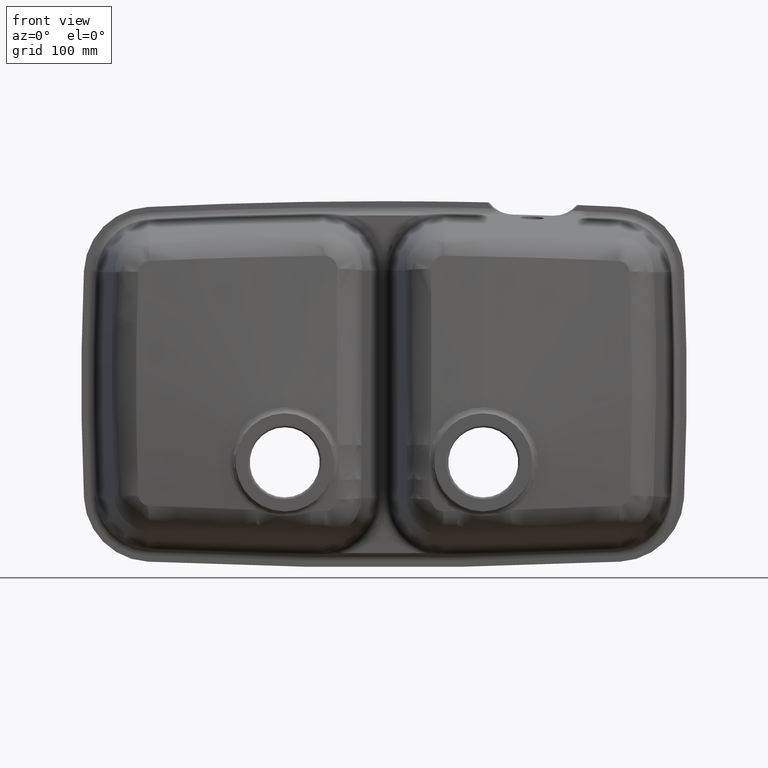
[diagram: clean part render]
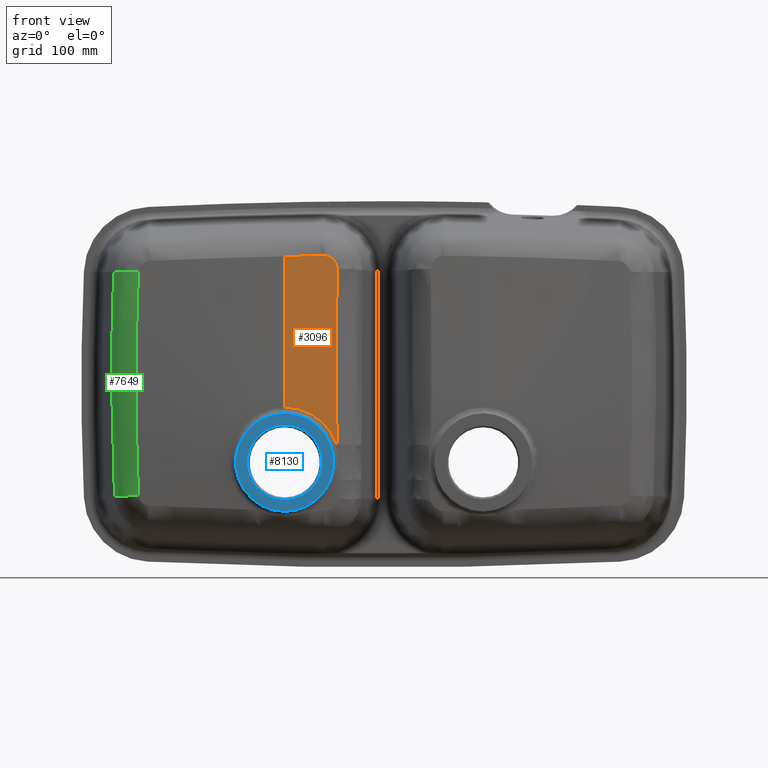
[diagram: same view with three faces highlighted in distinct colors, each labeled with its STEP entity id]
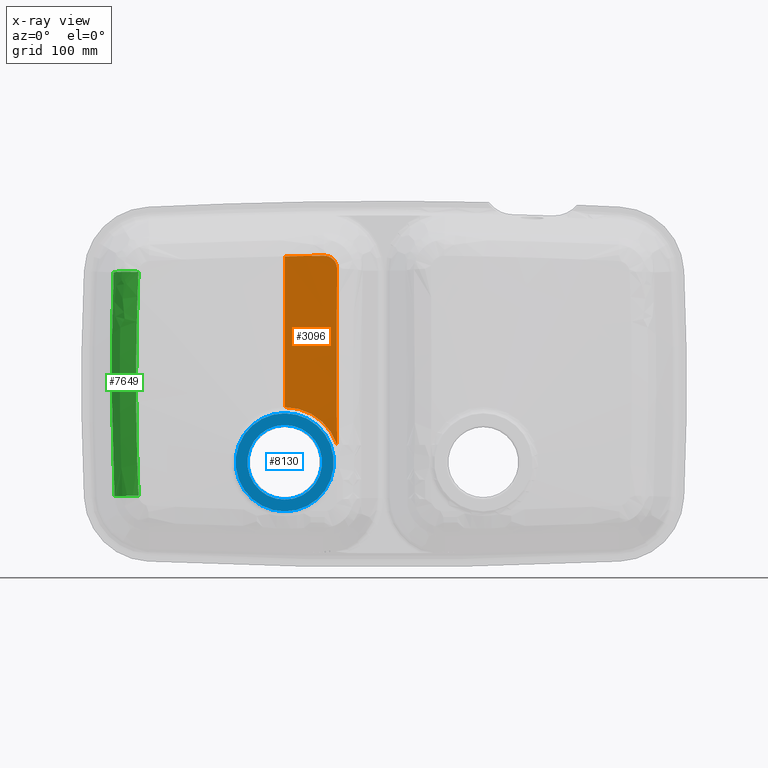
[diagram: x-ray of the same camera — body ghosted, the three highlighted faces saturated]
A machine part, front view with three faces highlighted in distinct colors.
The next image is the same camera in x-ray (body ghosted, the three faces saturated) — at least one of them is partly hidden behind the body in this view.
Their STEP definitions:

[orange] entity #3096 — the highlighted conical surface has half-angle 85.657 deg.
#158 = B_SPLINE_CURVE_WITH_KNOTS ( 'NONE', 3,
 ( #9717, #5851, #6613, #1115, #4264, #4298, #1144, #7391, #2737, #8200, #5075, #1179, #1985, #7428 ),
 .UNSPECIFIED., .F., .F.,
 ( 4, 2, 2, 2, 2, 2, 4 ),
 ( 0.07067209284286782300, 0.09935730717652363500, 0.1280425215101794500, 0.1567277358438352600, 0.1854129501774910400, 0.2427833788448027200, 0.3001538075121144000 ),
 .UNSPECIFIED. ) ;
#344 = DIRECTION ( 'NONE',  ( 0.0000000000000000000, 0.07572829474097282600, 0.9971284899026926500 ) ) ;
#566 = CARTESIAN_POINT ( 'NONE',  ( 120.1551832342902300, 1.654715429460115400, 158.6356603204801600 ) ) ;
#636 = CARTESIAN_POINT ( 'NONE',  ( 112.9395134687415100, 2.022236226964101200, 165.3109124205083200 ) ) ;
#667 = CARTESIAN_POINT ( 'NONE',  ( 118.9279575806813800, 1.769105793788708000, 160.4950657030094900 ) ) ;
#685 = DIRECTION ( 'NONE',  ( 0.0000000000000000000, -8.239523836350336800E-017, 1.000000000000000000 ) ) ;
#723 = DIRECTION ( 'NONE',  ( -0.0000000000000000000, 1.000000000000000000, 8.191772774009839300E-017 ) ) ;
#1109 = B_SPLINE_CURVE_WITH_KNOTS ( 'NONE', 3,
 ( #7332, #4332, #1370, #7577 ),
 .UNSPECIFIED., .F., .F.,
 ( 4, 4 ),
 ( 0.0000000000000000000, 0.05091544181470492000 ),
 .UNSPECIFIED. ) ;
#1115 = CARTESIAN_POINT ( 'NONE',  ( 122.0707607142422500, -11.81949924998842300, -40.35013401177111800 ) ) ;
#1144 = CARTESIAN_POINT ( 'NONE',  ( 121.8734990043594000, -9.614719707590753100, -2.222329744199195800 ) ) ;
#1179 = CARTESIAN_POINT ( 'NONE',  ( 122.1713085203319800, -1.711468703401609400, 112.0868703274706500 ) ) ;
#1215 = CONICAL_SURFACE ( 'NONE', #8558, 63.16105798457871900, 1.494995463840603600 ) ;
#1368 = CARTESIAN_POINT ( 'NONE',  ( 105.4154735399898600, 2.028873203288819900, 166.9365146197941700 ) ) ;
#1370 = CARTESIAN_POINT ( 'NONE',  ( 71.46224886830523800, 1.627631627222196200, 166.4444921457432500 ) ) ;
#1436 = CARTESIAN_POINT ( 'NONE',  ( 117.0406796761192800, 1.883540631787353300, 162.5003077496611500 ) ) ;
#1477 = CARTESIAN_POINT ( 'NONE',  ( 122.4118559755403300, 1.076818954258653000, 150.1810933609065700 ) ) ;
#1938 = AXIS2_PLACEMENT_3D ( 'NONE', #5405, #723, #8567 ) ;
#1985 = CARTESIAN_POINT ( 'NONE',  ( 122.2864565107624300, -0.3221642221016773900, 131.1342596749666100 ) ) ;
#2125 = CARTESIAN_POINT ( 'NONE',  ( 110.8659054664957800, 2.048829037880364600, 166.1132678664401400 ) ) ;
#2211 = FACE_OUTER_BOUND ( 'NONE', #8486, .T. ) ;
#2506 = B_SPLINE_CURVE_WITH_KNOTS ( 'NONE', 3,
 ( #1477, #3799, #9165, #3698, #4471, #3762, #4545, #6925, #6097, #566, #6892, #667, #3730, #1436, #6027, #6060, #6131, #4507, #636, #2902, #2125, #3829, #9959, #4603, #10025, #1368 ),
 .UNSPECIFIED., .F., .F.,
 ( 4, 2, 2, 2, 2, 2, 2, 2, 2, 2, 2, 2, 4 ),
 ( 0.0000000000000000000, 0.003328668433250859600, 0.004993002649876326200, 0.006657336866501792900, 0.008321671083127259500, 0.009986005299752725300, 0.01331467373300361300, 0.01497900794962908600, 0.01664334216625456100, 0.01997201059950555100, 0.02163634481613107100, 0.02330067903275658300, 0.02662934746600761600 ),
 .UNSPECIFIED. ) ;
#2737 = CARTESIAN_POINT ( 'NONE',  ( 121.8568574253427700, -7.748686521053190100, 26.36128420281100700 ) ) ;
#2884 = LINE ( 'NONE', #8151, #7033 ) ;
#2902 = CARTESIAN_POINT ( 'NONE',  ( 111.3962056046677800, 2.043583331415453200, 165.9302868823183100 ) ) ;
#2907 = ORIENTED_EDGE ( 'NONE', *, *, #3182, .T. ) ;
#3096 = ADVANCED_FACE ( 'NONE', ( #2211 ), #1215, .T. ) ;
#3182 = EDGE_CURVE ( 'NONE', #9123, #3790, #4162, .T. ) ;
#3698 = CARTESIAN_POINT ( 'NONE',  ( 121.9905051364474500, 1.351100522326686800, 154.0320274797501000 ) ) ;
#3730 = CARTESIAN_POINT ( 'NONE',  ( 118.2205967150070600, 1.818739271377084900, 161.3410910421340800 ) ) ;
#3762 = CARTESIAN_POINT ( 'NONE',  ( 121.5305096857410700, 1.459899400578553100, 155.6340483596859800 ) ) ;
#3790 = VERTEX_POINT ( 'NONE', #10066 ) ;
#3799 = CARTESIAN_POINT ( 'NONE',  ( 122.4191981401264300, 1.158729708440880500, 151.2962894106959200 ) ) ;
#3813 = ORIENTED_EDGE ( 'NONE', *, *, #9438, .T. ) ;
#3829 = CARTESIAN_POINT ( 'NONE',  ( 109.7983965929877400, 2.055313825657654600, 166.4232828113098900 ) ) ;
#4162 = CIRCLE ( 'NONE', #1938, 71.65123719112739300 ) ;
#4264 = CARTESIAN_POINT ( 'NONE',  ( 121.9989009234208800, -11.30923613312132600, -30.81582360130247600 ) ) ;
#4298 = CARTESIAN_POINT ( 'NONE',  ( 121.9009893882392400, -10.20709967451554700, -11.75190647765070800 ) ) ;
#4332 = CARTESIAN_POINT ( 'NONE',  ( 88.43706372215994800, 1.772518592327492000, 166.7241051411357400 ) ) ;
#4471 = CARTESIAN_POINT ( 'NONE',  ( 121.8540565138644500, 1.388325964644496100, 154.5749974688449100 ) ) ;
#4507 = CARTESIAN_POINT ( 'NONE',  ( 113.9172047557668600, 2.000549166745522600, 164.8018920152529200 ) ) ;
#4545 = CARTESIAN_POINT ( 'NONE',  ( 121.3431291361018900, 1.494413293109627400, 156.1524670646368000 ) ) ;
#4603 = CARTESIAN_POINT ( 'NONE',  ( 107.6340046314754600, 2.054657094764151800, 166.8541865221507100 ) ) ;
#4816 = CARTESIAN_POINT ( 'NONE',  ( 54.49117672960323900, 1.601166361354189500, 166.0960190858391700 ) ) ;
#5008 = VERTEX_POINT ( 'NONE', #5015 ) ;
#5015 = CARTESIAN_POINT ( 'NONE',  ( 105.4154735399898600, 2.028873203288819900, 166.9365146197941700 ) ) ;
#5075 = CARTESIAN_POINT ( 'NONE',  ( 121.9814089252728200, -4.448999600771051300, 73.98973189943275500 ) ) ;
#5095 = VERTEX_POINT ( 'NONE', #9659 ) ;
#5109 = EDGE_CURVE ( 'NONE', #3790, #5095, #158, .T. ) ;
#5369 = DIRECTION ( 'NONE',  ( -0.0000000000000000000, 1.000000000000000000, 8.191772774009839300E-017 ) ) ;
#5405 = CARTESIAN_POINT ( 'NONE',  ( 54.49117672957483200, -13.26477382000577000, -101.2978072488275200 ) ) ;
#5851 = CARTESIAN_POINT ( 'NONE',  ( 122.3497170271441200, -13.03970553504371200, -68.97101626502016800 ) ) ;
#6027 = CARTESIAN_POINT ( 'NONE',  ( 116.6274122710002100, 1.903520235001756400, 162.8682720579399800 ) ) ;
#6060 = CARTESIAN_POINT ( 'NONE',  ( 115.7598601366028400, 1.940179876775521600, 163.5663058246226700 ) ) ;
#6097 = CARTESIAN_POINT ( 'NONE',  ( 120.6807386820319700, 1.593041646333796000, 157.6642371017454100 ) ) ;
#6131 = CARTESIAN_POINT ( 'NONE',  ( 115.3072044908336000, 1.956761737755397200, 163.8946488016162600 ) ) ;
#6613 = CARTESIAN_POINT ( 'NONE',  ( 122.2456497601805300, -12.68541585413820300, -59.42769110303746800 ) ) ;
#6718 = CARTESIAN_POINT ( 'NONE',  ( 54.49117672957483900, -13.26477382000577500, -29.64657005770095600 ) ) ;
#6886 = VERTEX_POINT ( 'NONE', #4816 ) ;
#6892 = CARTESIAN_POINT ( 'NONE',  ( 119.8658501259557000, 1.684445716858865600, 159.1122711185344400 ) ) ;
#6925 = CARTESIAN_POINT ( 'NONE',  ( 120.9182444708696000, 1.560984487847608900, 157.1675617965630400 ) ) ;
#7033 = VECTOR ( 'NONE', #344, 1000.000000000000200 ) ;
#7071 = ORIENTED_EDGE ( 'NONE', *, *, #5109, .T. ) ;
#7332 = CARTESIAN_POINT ( 'NONE',  ( 105.4154735399898600, 2.028873203288819900, 166.9365146197941700 ) ) ;
#7391 = CARTESIAN_POINT ( 'NONE',  ( 121.8515837744933500, -8.385737416685579100, 16.83427864820443500 ) ) ;
#7428 = CARTESIAN_POINT ( 'NONE',  ( 122.4118559755403300, 1.076818954258653000, 150.1810933609065700 ) ) ;
#7482 = ORIENTED_EDGE ( 'NONE', *, *, #8238, .F. ) ;
#7577 = CARTESIAN_POINT ( 'NONE',  ( 54.49117672960323900, 1.601166361354189500, 166.0960190858391700 ) ) ;
#8151 = CARTESIAN_POINT ( 'NONE',  ( 54.49117672957483200, -13.90957215830198900, -38.13674926424881300 ) ) ;
#8200 = CARTESIAN_POINT ( 'NONE',  ( 121.9058454562087200, -5.798903238430875200, 54.94007954608704100 ) ) ;
#8238 = EDGE_CURVE ( 'NONE', #9123, #6886, #2884, .T. ) ;
#8486 = EDGE_LOOP ( 'NONE', ( #7482, #2907, #7071, #3813, #8920 ) ) ;
#8558 = AXIS2_PLACEMENT_3D ( 'NONE', #10007, #5369, #685 ) ;
#8567 = DIRECTION ( 'NONE',  ( 0.0000000000000000000, -7.263196885279820200E-017, 1.000000000000000000 ) ) ;
#8920 = ORIENTED_EDGE ( 'NONE', *, *, #9096, .T. ) ;
#9096 = EDGE_CURVE ( 'NONE', #5008, #6886, #1109, .T. ) ;
#9123 = VERTEX_POINT ( 'NONE', #6718 ) ;
#9165 = CARTESIAN_POINT ( 'NONE',  ( 122.3140512653862400, 1.237480104051362100, 152.3983402279683000 ) ) ;
#9438 = EDGE_CURVE ( 'NONE', #5095, #5008, #2506, .T. ) ;
#9659 = CARTESIAN_POINT ( 'NONE',  ( 122.4118559755403300, 1.076818954258653000, 150.1810933609065700 ) ) ;
#9717 = CARTESIAN_POINT ( 'NONE',  ( 122.4261078105812600, -13.26477382000577200, -78.52183460136187400 ) ) ;
#9959 = CARTESIAN_POINT ( 'NONE',  ( 109.2604034007172200, 2.056589444158411600, 166.5509990030463700 ) ) ;
#10007 = CARTESIAN_POINT ( 'NONE',  ( 54.49117672957483200, -13.90957215830198400, -101.2978072488275200 ) ) ;
#10025 = CARTESIAN_POINT ( 'NONE',  ( 106.5333044946140100, 2.045751174934554500, 166.9504993152321500 ) ) ;
#10066 = CARTESIAN_POINT ( 'NONE',  ( 122.4261078105812600, -13.26477382000577200, -78.52183460136187400 ) ) ;

[blue] entity #8130 — the highlighted planar face has unit normal (0, 1, 0).
#41 = DIRECTION ( 'NONE',  ( 0.0000000000000000000, 1.000000000000000000, 0.0000000000000000000 ) ) ;
#163 = DIRECTION ( 'NONE',  ( 0.0000000000000000000, 0.0000000000000000000, -1.000000000000000000 ) ) ;
#287 = CARTESIAN_POINT ( 'NONE',  ( 54.49117672957483200, -18.31936469042739200, -164.9832356077469100 ) ) ;
#304 = EDGE_CURVE ( 'NONE', #5081, #5111, #2611, .T. ) ;
#467 = DIRECTION ( 'NONE',  ( 0.0000000000000000000, 0.0000000000000000000, 1.000000000000000000 ) ) ;
#734 = CARTESIAN_POINT ( 'NONE',  ( 54.49117672957483200, -18.31936469042739200, -52.79130883959363300 ) ) ;
#991 = CARTESIAN_POINT ( 'NONE',  ( 54.49117672957483200, -18.31936469042739200, -101.2978072488275200 ) ) ;
#1360 = CARTESIAN_POINT ( 'NONE',  ( 54.49117672957483900, -18.31936469042739200, -149.8043056580614500 ) ) ;
#1597 = AXIS2_PLACEMENT_3D ( 'NONE', #5676, #5713, #2626 ) ;
#1613 = AXIS2_PLACEMENT_3D ( 'NONE', #4272, #9846, #467 ) ;
#2063 = ORIENTED_EDGE ( 'NONE', *, *, #9524, .T. ) ;
#2190 = CARTESIAN_POINT ( 'NONE',  ( 54.49117672957483200, -18.31936469042739200, -101.2978072488275200 ) ) ;
#2239 = EDGE_CURVE ( 'NONE', #2689, #5809, #7211, .T. ) ;
#2611 = CIRCLE ( 'NONE', #4202, 63.68542835891938100 ) ;
#2626 = DIRECTION ( 'NONE',  ( 0.0000000000000000000, -0.0000000000000000000, 1.000000000000000000 ) ) ;
#2689 = VERTEX_POINT ( 'NONE', #1360 ) ;
#2973 = DIRECTION ( 'NONE',  ( 0.0000000000000000000, 1.000000000000000000, 0.0000000000000000000 ) ) ;
#3758 = DIRECTION ( 'NONE',  ( 0.0000000000000000000, 0.0000000000000000000, -1.000000000000000000 ) ) ;
#4038 = EDGE_LOOP ( 'NONE', ( #5623, #7461 ) ) ;
#4109 = DIRECTION ( 'NONE',  ( 0.0000000000000000000, 1.000000000000000000, 0.0000000000000000000 ) ) ;
#4202 = AXIS2_PLACEMENT_3D ( 'NONE', #991, #4109, #163 ) ;
#4272 = CARTESIAN_POINT ( 'NONE',  ( 54.49117672957483200, -18.31936469042739200, -101.2978072488275400 ) ) ;
#4501 = AXIS2_PLACEMENT_3D ( 'NONE', #2190, #2973, #3758 ) ;
#4544 = PLANE ( 'NONE',  #1597 ) ;
#5081 = VERTEX_POINT ( 'NONE', #287 ) ;
#5111 = VERTEX_POINT ( 'NONE', #8160 ) ;
#5419 = CARTESIAN_POINT ( 'NONE',  ( 54.49117672957483200, -18.31936469042739200, -101.2978072488275400 ) ) ;
#5433 = CIRCLE ( 'NONE', #6024, 48.50649840923391300 ) ;
#5623 = ORIENTED_EDGE ( 'NONE', *, *, #304, .F. ) ;
#5676 = CARTESIAN_POINT ( 'NONE',  ( -1123.367811455964100, -18.31936469042739200, -71.56469586908532700 ) ) ;
#5713 = DIRECTION ( 'NONE',  ( 0.0000000000000000000, 1.000000000000000000, 0.0000000000000000000 ) ) ;
#5798 = EDGE_CURVE ( 'NONE', #5111, #5081, #9030, .T. ) ;
#5809 = VERTEX_POINT ( 'NONE', #734 ) ;
#6024 = AXIS2_PLACEMENT_3D ( 'NONE', #5419, #41, #9340 ) ;
#7211 = CIRCLE ( 'NONE', #1613, 48.50649840923391300 ) ;
#7461 = ORIENTED_EDGE ( 'NONE', *, *, #5798, .F. ) ;
#7657 = FACE_BOUND ( 'NONE', #9537, .T. ) ;
#8130 = ADVANCED_FACE ( 'NONE', ( #7657, #8266 ), #4544, .F. ) ;
#8160 = CARTESIAN_POINT ( 'NONE',  ( 54.49117672957483900, -18.31936469042739200, -37.61237888990813600 ) ) ;
#8266 = FACE_OUTER_BOUND ( 'NONE', #4038, .T. ) ;
#9030 = CIRCLE ( 'NONE', #4501, 63.68542835891938100 ) ;
#9340 = DIRECTION ( 'NONE',  ( 0.0000000000000000000, 0.0000000000000000000, 1.000000000000000000 ) ) ;
#9524 = EDGE_CURVE ( 'NONE', #5809, #2689, #5433, .T. ) ;
#9537 = EDGE_LOOP ( 'NONE', ( #2063, #9651 ) ) ;
#9651 = ORIENTED_EDGE ( 'NONE', *, *, #2239, .T. ) ;
#9846 = DIRECTION ( 'NONE',  ( 0.0000000000000000000, 1.000000000000000000, 0.0000000000000000000 ) ) ;

[green] entity #7649 — the highlighted face is a freeform B-spline surface patch.
#52 = EDGE_CURVE ( 'NONE', #9768, #3068, #7354, .T. ) ;
#137 = CARTESIAN_POINT ( 'NONE',  ( -138.5045189871754600, -2.983021411416705100, -23.37168781737836600 ) ) ;
#201 = CARTESIAN_POINT ( 'NONE',  ( -138.4212742279881600, -1.211090179300789800, 24.99748255850250800 ) ) ;
#348 = B_SPLINE_CURVE_WITH_KNOTS ( 'NONE', 3,
 ( #3409, #6537, #9650, #4971, #1880, #5750, #8125, #1777, #8062, #7222, #9684, #6510, #7998, #8879 ),
 .UNSPECIFIED., .F., .F.,
 ( 4, 2, 2, 2, 2, 2, 4 ),
 ( 2.775557561562891400E-017, 0.03634043084972685800, 0.07268086169945368900, 0.1453617233989073200, 0.1817021542486341700, 0.2180425850983609400, 0.2907234467978144800 ),
 .UNSPECIFIED. ) ;
#419 = CARTESIAN_POINT ( 'NONE',  ( -165.3451122777057100, -1.987712831422647300, -84.34360034221113300 ) ) ;
#458 = CARTESIAN_POINT ( 'NONE',  ( -169.3206949742941000, 26.07755359151767000, -60.47227984677924400 ) ) ;
#494 = CARTESIAN_POINT ( 'NONE',  ( -136.4541037127467000, 3.566863704465246700, 121.8363272166522400 ) ) ;
#525 = CARTESIAN_POINT ( 'NONE',  ( -170.1065423090152500, 28.65604702263395600, 24.28688736054539300 ) ) ;
#666 =( BOUNDED_SURFACE ( )  B_SPLINE_SURFACE ( 3, 2, ( 
 ( #8131, #6584, #4328 ),
 ( #8201, #5758, #3510 ),
 ( #1855, #8163, #9810 ),
 ( #8982, #8232, #9016 ),
 ( #5115, #419, #8889 ),
 ( #4200, #4982, #458 ),
 ( #5884, #2047, #2149 ),
 ( #8405, #8335, #4360 ),
 ( #6774, #1325, #2120 ),
 ( #5917, #9988, #3654 ),
 ( #3615, #3584, #525 ),
 ( #3728, #9875, #9842 ),
 ( #7498, #4399, #9195 ),
 ( #6677, #2016, #5177 ),
 ( #494, #9056, #2800 ),
 ( #7460, #5286, #7570 ) ),
 .UNSPECIFIED., .F., .F., .F. ) 
 B_SPLINE_SURFACE_WITH_KNOTS ( ( 4, 2, 2, 2, 2, 2, 2, 4 ),
 ( 3, 3 ),
 ( 0.0000000000000000000, 0.03596460462819837300, 0.07192920925639674500, 0.1078938138845951200, 0.1438584185127934900, 0.1798230231409918600, 0.2157876277691902500, 0.2877168370255869800 ),
 ( 0.0000000000000000000, 1.000000000000000000 ),
 .UNSPECIFIED. ) 
 GEOMETRIC_REPRESENTATION_ITEM ( )  RATIONAL_B_SPLINE_SURFACE ( (
 ( 1.000000000000000000, 0.7731396928112501700, 1.000000000000000000),
 ( 1.000000000000000000, 0.7733899646188008300, 1.000000000000000000),
 ( 1.000000000000000000, 0.7735239043682535800, 1.000000000000000000),
 ( 1.000000000000000000, 0.7735269548299192900, 1.000000000000000000),
 ( 1.000000000000000000, 0.7733949347355566500, 1.000000000000000000),
 ( 1.000000000000000000, 0.7729024630506982100, 1.000000000000000000),
 ( 1.000000000000000000, 0.7725436789309362300, 1.000000000000000000),
 ( 1.000000000000000000, 0.7716894095530174600, 1.000000000000000000),
 ( 1.000000000000000000, 0.7711953754814696600, 1.000000000000000000),
 ( 1.000000000000000000, 0.7701614609434851400, 1.000000000000000000),
 ( 1.000000000000000000, 0.7696219685470007100, 1.000000000000000000),
 ( 1.000000000000000000, 0.7685579152356210000, 1.000000000000000000),
 ( 1.000000000000000000, 0.7680331219966741700, 1.000000000000000000),
 ( 1.000000000000000000, 0.7665274934210166700, 1.000000000000000000),
 ( 1.000000000000000000, 0.7656167661881981800, 1.000000000000000000),
 ( 1.000000000000000000, 0.7648286304921863000, 1.000000000000000000) ) ) 
 REPRESENTATION_ITEM ( '' )  SURFACE ( )  );
#682 = CIRCLE ( 'NONE', #10174, 34.10200000000000400 ) ;
#895 = CARTESIAN_POINT ( 'NONE',  ( -138.1611730694414500, -0.1560549641806731900, 49.18189232606422200 ) ) ;
#1087 = VERTEX_POINT ( 'NONE', #4287 ) ;
#1325 = CARTESIAN_POINT ( 'NONE',  ( -166.5841955052943600, -0.6154761058054634100, -11.08461427962685500 ) ) ;
#1429 = FACE_OUTER_BOUND ( 'NONE', #4775, .T. ) ;
#1663 = CARTESIAN_POINT ( 'NONE',  ( -138.4896329194962700, -1.695512998416818500, 12.90531966875311200 ) ) ;
#1777 = CARTESIAN_POINT ( 'NONE',  ( -170.1144564882677300, 28.17068847043535500, 12.17723779686457200 ) ) ;
#1855 = CARTESIAN_POINT ( 'NONE',  ( -136.3401158025885400, -4.173168969430588700, -120.0231468500618500 ) ) ;
#1880 = CARTESIAN_POINT ( 'NONE',  ( -168.7431955400766400, 25.75519054593161900, -84.69250859133785500 ) ) ;
#2016 = CARTESIAN_POINT ( 'NONE',  ( -165.7274439819920500, 3.770642520917064600, 98.39920593821025800 ) ) ;
#2047 = CARTESIAN_POINT ( 'NONE',  ( -166.1467091820015600, -1.495659726940035800, -47.68703248577518400 ) ) ;
#2120 = CARTESIAN_POINT ( 'NONE',  ( -170.0091828118107200, 27.30940745222288200, -12.03768689755182200 ) ) ;
#2149 = CARTESIAN_POINT ( 'NONE',  ( -169.5517507307115200, 26.31746345041807100, -48.36326713582965900 ) ) ;
#2204 = DIRECTION ( 'NONE',  ( 0.0000000000000000000, -0.9982938134683747600, 0.05839059847928992900 ) ) ;
#2411 = CARTESIAN_POINT ( 'NONE',  ( -137.2103909337163300, 2.223999854589306000, 97.53731127661672000 ) ) ;
#2451 = CARTESIAN_POINT ( 'NONE',  ( -137.4758933549871900, -4.095035878741648500, -83.83852044357158200 ) ) ;
#2485 = CARTESIAN_POINT ( 'NONE',  ( -136.3361851246457700, -4.172462187177066200, -120.1226928673565300 ) ) ;
#2546 = ORIENTED_EDGE ( 'NONE', *, *, #7716, .F. ) ;
#2800 = CARTESIAN_POINT ( 'NONE',  ( -168.6045818098329800, 33.41496267914994400, 121.1204305530551600 ) ) ;
#3068 = VERTEX_POINT ( 'NONE', #8499 ) ;
#3230 = CARTESIAN_POINT ( 'NONE',  ( -135.8604965717116200, -4.088414934787637700, -132.2181979400534700 ) ) ;
#3409 = CARTESIAN_POINT ( 'NONE',  ( -166.6101882362366100, 25.92227382078901200, -145.2473143732212900 ) ) ;
#3510 = CARTESIAN_POINT ( 'NONE',  ( -167.1288146424487300, 25.75905979997011000, -133.1351143717274100 ) ) ;
#3584 = CARTESIAN_POINT ( 'NONE',  ( -166.6531033717501200, 0.5999335616051086900, 25.45628732874414300 ) ) ;
#3615 = CARTESIAN_POINT ( 'NONE',  ( -138.4177887377108500, -1.192040391275682700, 25.45756970850986900 ) ) ;
#3654 = CARTESIAN_POINT ( 'NONE',  ( -170.1144580161021300, 28.17074650014786000, 12.17874186793220300 ) ) ;
#3728 = CARTESIAN_POINT ( 'NONE',  ( -138.1551838497748000, -0.1368544702692187900, 49.59774482752865100 ) ) ;
#4200 = CARTESIAN_POINT ( 'NONE',  ( -138.0059566197255700, -3.770533822262109000, -59.29284536716676300 ) ) ;
#4246 = EDGE_CURVE ( 'NONE', #3068, #8354, #6862, .T. ) ;
#4287 = CARTESIAN_POINT ( 'NONE',  ( -166.6101882362366100, 25.92227382078901200, -145.2473143732212900 ) ) ;
#4303 = CARTESIAN_POINT ( 'NONE',  ( -132.7958052485476500, 30.07826216959149300, -143.7434300669966400 ) ) ;
#4328 = CARTESIAN_POINT ( 'NONE',  ( -166.6101882362357000, 25.92227382078908000, -145.2473143732212600 ) ) ;
#4360 = CARTESIAN_POINT ( 'NONE',  ( -169.8960106862310200, 26.93352251484688200, -24.14597359190646800 ) ) ;
#4399 = CARTESIAN_POINT ( 'NONE',  ( -166.3481476649508300, 2.091585487857821900, 61.94158679072575100 ) ) ;
#4775 = EDGE_LOOP ( 'NONE', ( #8769, #9069, #9172, #2546 ) ) ;
#4897 = CARTESIAN_POINT ( 'NONE',  ( -136.4597860057502000, 3.558858572116506900, 121.6990196688579400 ) ) ;
#4971 = CARTESIAN_POINT ( 'NONE',  ( -168.3968090255187900, 25.67298576708764600, -96.80256342980574400 ) ) ;
#4982 = CARTESIAN_POINT ( 'NONE',  ( -165.9196896384102000, -1.706021455679627400, -59.90337769962159300 ) ) ;
#5080 = DIRECTION ( 'NONE',  ( -0.04275808146979929300, -0.01360242771095341600, 0.9989928530421978700 ) ) ;
#5115 = CARTESIAN_POINT ( 'NONE',  ( -137.4827858800134100, -4.092888343313924300, -83.57499123992553800 ) ) ;
#5177 = CARTESIAN_POINT ( 'NONE',  ( -169.2484761859215000, 32.08611367618641500, 96.92474643702495000 ) ) ;
#5286 = CARTESIAN_POINT ( 'NONE',  ( -164.1347802099736600, 6.353438291947469500, 146.8379694371975900 ) ) ;
#5750 = CARTESIAN_POINT ( 'NONE',  ( -169.6094050676519800, 26.23870265067832000, -48.36405383007159000 ) ) ;
#5758 = CARTESIAN_POINT ( 'NONE',  ( -163.7148282820442100, -1.984353162091861700, -133.2605551561940200 ) ) ;
#5855 = DIRECTION ( 'NONE',  ( 0.9990852857148433400, 0.0000000000000000000, 0.04276203769805008600 ) ) ;
#5884 = CARTESIAN_POINT ( 'NONE',  ( -138.1967384641141100, -3.530623963374693600, -47.16004095289413600 ) ) ;
#5908 = CARTESIAN_POINT ( 'NONE',  ( -135.3144196173350900, -3.925813593070189600, -144.3142340513039400 ) ) ;
#5917 = CARTESIAN_POINT ( 'NONE',  ( -138.4877655507705500, -1.677340913385474000, 13.37627464661981100 ) ) ;
#6363 = CARTESIAN_POINT ( 'NONE',  ( -135.3144196173350900, -3.925813593070189600, -144.3142340513039400 ) ) ;
#6510 = CARTESIAN_POINT ( 'NONE',  ( -169.2484991009467300, 32.08606400386152300, 96.92383052045380500 ) ) ;
#6537 = CARTESIAN_POINT ( 'NONE',  ( -167.1288037188823500, 25.75906323598070500, -133.1353694802317300 ) ) ;
#6584 = CARTESIAN_POINT ( 'NONE',  ( -163.1875260429704300, -1.841758152270801100, -145.4788593420070400 ) ) ;
#6677 = CARTESIAN_POINT ( 'NONE',  ( -137.2027158328072600, 2.238026262275711000, 97.79351911663009400 ) ) ;
#6701 = CARTESIAN_POINT ( 'NONE',  ( -167.7009947263194900, 34.81496159699069200, 145.3062131594597000 ) ) ;
#6774 = CARTESIAN_POINT ( 'NONE',  ( -138.5009757669847700, -2.538679961962335300, -10.81236300561239700 ) ) ;
#6862 = B_SPLINE_CURVE_WITH_KNOTS ( 'NONE', 3,
 ( #7210, #4897, #2411, #7876, #895, #201, #1663, #137, #7117, #2451, #7910, #2485, #3230, #6363 ),
 .UNSPECIFIED., .F., .F.,
 ( 4, 2, 2, 2, 2, 2, 4 ),
 ( 2.776912483567713300E-017, 0.07263001660656746800, 0.1089450249098512000, 0.1452600332131349100, 0.2178900498197023600, 0.2542050581229861100, 0.2905200664262698200 ),
 .UNSPECIFIED. ) ;
#6902 = DIRECTION ( 'NONE',  ( 0.03719650101132462900, 0.05835019047453055000, 0.9976029649034231500 ) ) ;
#7007 = AXIS2_PLACEMENT_3D ( 'NONE', #7620, #6902, #2204 ) ;
#7117 = CARTESIAN_POINT ( 'NONE',  ( -138.2611917899815200, -3.617388044129290500, -47.55711437441269100 ) ) ;
#7210 = CARTESIAN_POINT ( 'NONE',  ( -135.4603374567969600, 4.966874183131470700, 145.8499183851354200 ) ) ;
#7222 = CARTESIAN_POINT ( 'NONE',  ( -169.9665785510484000, 29.71116989532133000, 48.50221543933675900 ) ) ;
#7354 = CIRCLE ( 'NONE', #7007, 34.10199999999999700 ) ;
#7460 = CARTESIAN_POINT ( 'NONE',  ( -135.4603374567976200, 4.966874183131513300, 145.8499183851354800 ) ) ;
#7498 = CARTESIAN_POINT ( 'NONE',  ( -137.9625082901820600, 0.4329998250318276600, 61.65680365975811100 ) ) ;
#7570 = CARTESIAN_POINT ( 'NONE',  ( -167.7009947263196100, 34.81496159699078400, 145.3062131594597300 ) ) ;
#7620 = CARTESIAN_POINT ( 'NONE',  ( -133.8866117386305100, 38.97094994579312300, 143.8023288532350800 ) ) ;
#7649 = ADVANCED_FACE ( 'NONE', ( #1429 ), #666, .T. ) ;
#7716 = EDGE_CURVE ( 'NONE', #1087, #9768, #348, .T. ) ;
#7876 = CARTESIAN_POINT ( 'NONE',  ( -137.9693818854396700, 0.4145219865306129000, 61.27431416869991700 ) ) ;
#7910 = CARTESIAN_POINT ( 'NONE',  ( -137.1438835866861700, -4.175772179369238800, -95.93285412958555000 ) ) ;
#7998 = CARTESIAN_POINT ( 'NONE',  ( -168.6046009449028100, 33.41493303752513100, 121.1199183920918900 ) ) ;
#8050 = EDGE_CURVE ( 'NONE', #1087, #8354, #682, .T. ) ;
#8062 = CARTESIAN_POINT ( 'NONE',  ( -170.1065459784636900, 28.65598602254186000, 24.28541105950834800 ) ) ;
#8125 = CARTESIAN_POINT ( 'NONE',  ( -169.9565286581197700, 26.87869357415650700, -24.14740316617419700 ) ) ;
#8131 = CARTESIAN_POINT ( 'NONE',  ( -135.3144196173350100, -3.925813593070194100, -144.3142340513039400 ) ) ;
#8163 = CARTESIAN_POINT ( 'NONE',  ( -164.1824540825647900, -2.057411869257344000, -121.0287779154274500 ) ) ;
#8201 = CARTESIAN_POINT ( 'NONE',  ( -135.8625512988180600, -4.089026752489408200, -132.1726843111852100 ) ) ;
#8232 = CARTESIAN_POINT ( 'NONE',  ( -164.9974672438321500, -2.059090114721473100, -96.57414402205134300 ) ) ;
#8335 = CARTESIAN_POINT ( 'NONE',  ( -166.4789967894080300, -0.9504204038482723100, -23.27980401727061700 ) ) ;
#8354 = VERTEX_POINT ( 'NONE', #5908 ) ;
#8405 = CARTESIAN_POINT ( 'NONE',  ( -138.4441789711262900, -2.914564899078905500, -22.91983203923080800 ) ) ;
#8499 = CARTESIAN_POINT ( 'NONE',  ( -135.4603374567969600, 4.966874183131470700, 145.8499183851354200 ) ) ;
#8769 = ORIENTED_EDGE ( 'NONE', *, *, #8050, .T. ) ;
#8879 = CARTESIAN_POINT ( 'NONE',  ( -167.7009947263194900, 34.81496159699069200, 145.3062131594597000 ) ) ;
#8889 = CARTESIAN_POINT ( 'NONE',  ( -168.7432231673229500, 25.75519907062484700, -84.69150093742224800 ) ) ;
#8982 = CARTESIAN_POINT ( 'NONE',  ( -137.1502363027923400, -4.175098722525972600, -95.72418979741112800 ) ) ;
#9016 = CARTESIAN_POINT ( 'NONE',  ( -168.3968352396291000, 25.67298869108707700, -96.80171448464572800 ) ) ;
#9056 = CARTESIAN_POINT ( 'NONE',  ( -165.0598421778465200, 5.022250399952183900, 122.6404787762607400 ) ) ;
#9069 = ORIENTED_EDGE ( 'NONE', *, *, #4246, .F. ) ;
#9172 = ORIENTED_EDGE ( 'NONE', *, *, #52, .F. ) ;
#9195 = CARTESIAN_POINT ( 'NONE',  ( -169.8344813997257200, 30.28108723886539300, 60.61223705942564500 ) ) ;
#9650 = CARTESIAN_POINT ( 'NONE',  ( -167.5896133068256100, 25.67492147382754900, -121.0239938649527100 ) ) ;
#9684 = CARTESIAN_POINT ( 'NONE',  ( -169.8344981881429300, 30.28102507052446800, 60.61094470690121500 ) ) ;
#9768 = VERTEX_POINT ( 'NONE', #6701 ) ;
#9810 = CARTESIAN_POINT ( 'NONE',  ( -167.5896310097482500, 25.67491844467491200, -121.0235249933424600 ) ) ;
#9842 = CARTESIAN_POINT ( 'NONE',  ( -169.9665657652869300, 29.71123294353969200, 48.50358607737617700 ) ) ;
#9875 = CARTESIAN_POINT ( 'NONE',  ( -166.4916080248994500, 1.565863190982295800, 49.78584976508861400 ) ) ;
#9988 = CARTESIAN_POINT ( 'NONE',  ( -166.6713268363470500, 0.1596698650923494000, 13.28256890075043900 ) ) ;
#10174 = AXIS2_PLACEMENT_3D ( 'NONE', #4303, #5080, #5855 ) ;